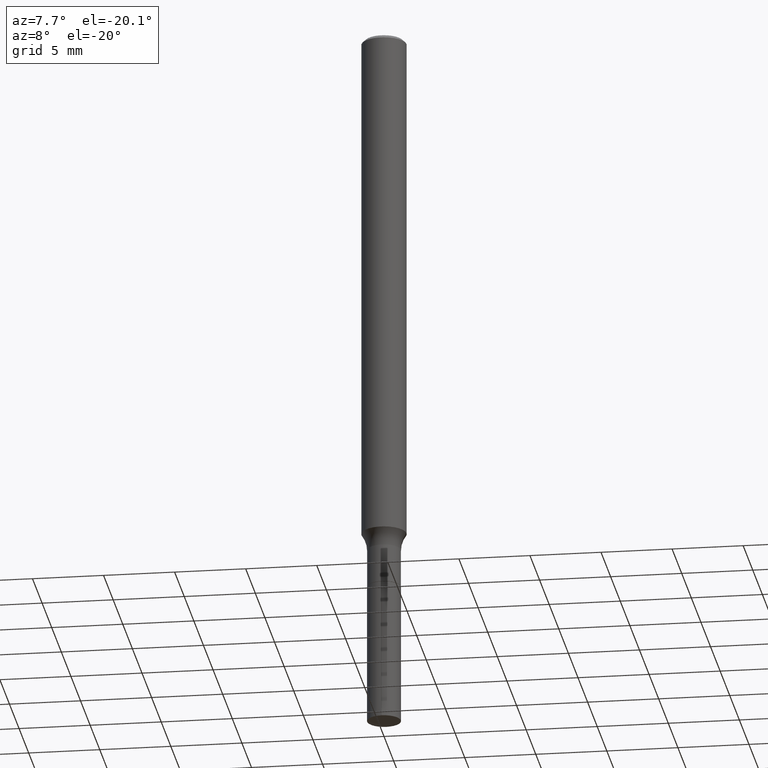
[diagram: clean part render]
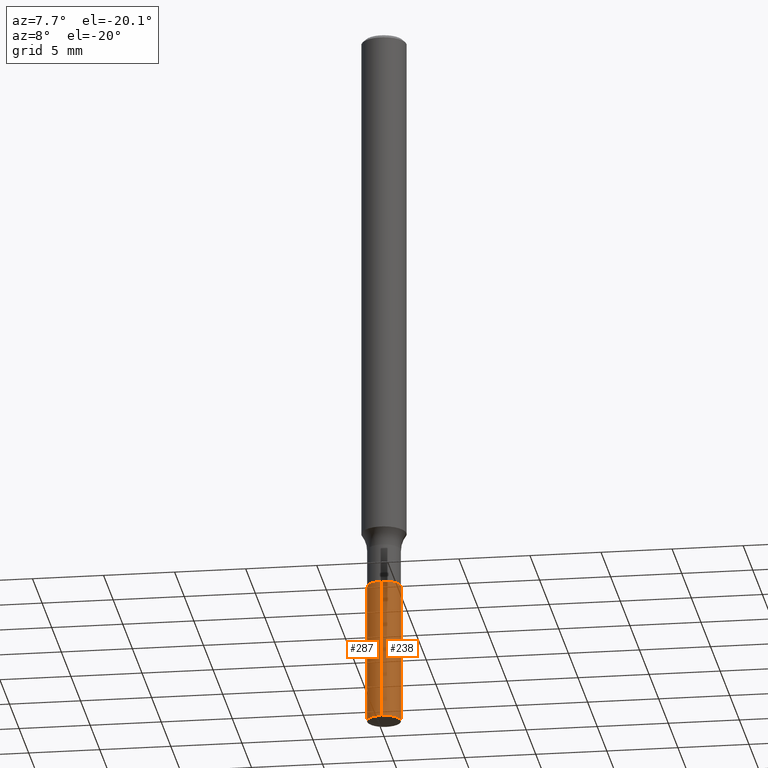
[diagram: same view with one multi-face feature highlighted, each face labeled with its STEP entity id]
A machine part, auxiliary view. The highlighted faces form ONE feature: a constant-radius fillet chain: 2 tangent blend faces with common blend radius 1.1874 mm. The faces share edges in the B-rep.
Their STEP definitions:
[1] entity #238 (Cylinder):
#70 = VECTOR ( 'NONE', #330, 39.37007874015748143 ) ;
#72 = CARTESIAN_POINT ( 'NONE',  ( -3.264535051817940010E-16, -0.04675000000000557182, -1.593499999999999917 ) ) ;
#74 = LINE ( 'NONE', #342, #352 ) ;
#80 = CARTESIAN_POINT ( 'NONE',  ( 3.321787289678954497E-16, 0.04674999999999308875, -1.985259781619907793 ) ) ;
#81 = DIRECTION ( 'NONE',  ( -2.445454611709691350E-29, 3.491501666139882444E-15, 1.000000000000000000 ) ) ;
#90 = EDGE_LOOP ( 'NONE', ( #112, #412, #204, #96 ) ) ;
#91 = AXIS2_PLACEMENT_3D ( 'NONE', #226, #220, #305 ) ;
#96 = ORIENTED_EDGE ( 'NONE', *, *, #355, .F. ) ;
#112 = ORIENTED_EDGE ( 'NONE', *, *, #477, .T. ) ;
#191 = DIRECTION ( 'NONE',  ( -2.445454611709691350E-29, 3.491501666139882444E-15, 1.000000000000000000 ) ) ;
#204 = ORIENTED_EDGE ( 'NONE', *, *, #317, .F. ) ;
#208 = AXIS2_PLACEMENT_3D ( 'NONE', #334, #294, #381 ) ;
#220 = DIRECTION ( 'NONE',  ( -2.445454611709691350E-29, 3.491501666139882444E-15, 1.000000000000000000 ) ) ;
#226 = CARTESIAN_POINT ( 'NONE',  ( 4.854885307300799577E-29, -6.931505443699056081E-15, -1.985259781619907349 ) ) ;
#238 = ADVANCED_FACE ( 'NONE', ( #432 ), #353, .T. ) ;
#268 = DIRECTION ( 'NONE',  ( -6.982962677686266711E-15, -1.000000000000000000, 5.843525120137461189E-15 ) ) ;
#285 = CIRCLE ( 'NONE', #91, 0.04674999999999999989 ) ;
#294 = DIRECTION ( 'NONE',  ( -2.445454611709691350E-29, 3.491501666139882444E-15, 1.000000000000000000 ) ) ;
#303 = CARTESIAN_POINT ( 'NONE',  ( 3.321787289678954004E-16, 0.04674999999999443490, -1.593500000000000361 ) ) ;
#305 = DIRECTION ( 'NONE',  ( -6.982962677686266711E-15, -1.000000000000000000, 5.843525120137461189E-15 ) ) ;
#317 = EDGE_CURVE ( 'NONE', #363, #384, #485, .T. ) ;
#318 = VERTEX_POINT ( 'NONE', #457 ) ;
#330 = DIRECTION ( 'NONE',  ( -2.445454611709691350E-29, 3.491501666139882444E-15, 1.000000000000000000 ) ) ;
#334 = CARTESIAN_POINT ( 'NONE',  ( 3.896854542656015611E-29, -5.563675513446552755E-15, -1.593500000000000139 ) ) ;
#338 = LINE ( 'NONE', #72, #70 ) ;
#341 = AXIS2_PLACEMENT_3D ( 'NONE', #473, #81, #268 ) ;
#342 = CARTESIAN_POINT ( 'NONE',  ( 3.321787289678857368E-16, 0.04674999999999443490, -1.593500000000000361 ) ) ;
#352 = VECTOR ( 'NONE', #191, 39.37007874015748143 ) ;
#353 = CYLINDRICAL_SURFACE ( 'NONE', #341, 0.04674999999999999989 ) ;
#355 = EDGE_CURVE ( 'NONE', #318, #363, #338, .T. ) ;
#363 = VERTEX_POINT ( 'NONE', #491 ) ;
#381 = DIRECTION ( 'NONE',  ( -6.982962677686266711E-15, -1.000000000000000000, 5.843525120137461189E-15 ) ) ;
#384 = VERTEX_POINT ( 'NONE', #303 ) ;
#407 = EDGE_CURVE ( 'NONE', #460, #384, #74, .T. ) ;
#412 = ORIENTED_EDGE ( 'NONE', *, *, #407, .T. ) ;
#432 = FACE_OUTER_BOUND ( 'NONE', #90, .T. ) ;
#457 = CARTESIAN_POINT ( 'NONE',  ( -3.264535051817844853E-16, -0.04675000000000695266, -1.985259781619907127 ) ) ;
#460 = VERTEX_POINT ( 'NONE', #80 ) ;
#473 = CARTESIAN_POINT ( 'NONE',  ( 3.896854542656015611E-29, -5.563675513446552755E-15, -1.593500000000000139 ) ) ;
#477 = EDGE_CURVE ( 'NONE', #318, #460, #285, .T. ) ;
#485 = CIRCLE ( 'NONE', #208, 0.04674999999999999989 ) ;
#491 = CARTESIAN_POINT ( 'NONE',  ( -3.264535051817940010E-16, -0.04675000000000557182, -1.593499999999999917 ) ) ;
[2] entity #287 (Cylinder):
#31 = DIRECTION ( 'NONE',  ( -6.982962677686266711E-15, -1.000000000000000000, 5.843525120137461189E-15 ) ) ;
#58 = DIRECTION ( 'NONE',  ( -2.445454611709691350E-29, 3.491501666139882444E-15, 1.000000000000000000 ) ) ;
#70 = VECTOR ( 'NONE', #330, 39.37007874015748143 ) ;
#72 = CARTESIAN_POINT ( 'NONE',  ( -3.264535051817940010E-16, -0.04675000000000557182, -1.593499999999999917 ) ) ;
#74 = LINE ( 'NONE', #342, #352 ) ;
#76 = CARTESIAN_POINT ( 'NONE',  ( 4.854885307300799577E-29, -6.931505443699056081E-15, -1.985259781619907349 ) ) ;
#80 = CARTESIAN_POINT ( 'NONE',  ( 3.321787289678954497E-16, 0.04674999999999308875, -1.985259781619907793 ) ) ;
#86 = AXIS2_PLACEMENT_3D ( 'NONE', #121, #58, #31 ) ;
#94 = ORIENTED_EDGE ( 'NONE', *, *, #227, .F. ) ;
#103 = ORIENTED_EDGE ( 'NONE', *, *, #355, .T. ) ;
#111 = DIRECTION ( 'NONE',  ( -2.445454611709691350E-29, 3.491501666139882444E-15, 1.000000000000000000 ) ) ;
#117 = DIRECTION ( 'NONE',  ( -2.445454611709691350E-29, 3.491501666139882444E-15, 1.000000000000000000 ) ) ;
#121 = CARTESIAN_POINT ( 'NONE',  ( 3.896854542656015611E-29, -5.563675513446552755E-15, -1.593500000000000139 ) ) ;
#155 = EDGE_CURVE ( 'NONE', #460, #318, #190, .T. ) ;
#190 = CIRCLE ( 'NONE', #461, 0.04674999999999999989 ) ;
#191 = DIRECTION ( 'NONE',  ( -2.445454611709691350E-29, 3.491501666139882444E-15, 1.000000000000000000 ) ) ;
#212 = ORIENTED_EDGE ( 'NONE', *, *, #407, .F. ) ;
#227 = EDGE_CURVE ( 'NONE', #384, #363, #307, .T. ) ;
#263 = EDGE_LOOP ( 'NONE', ( #212, #321, #103, #94 ) ) ;
#287 = ADVANCED_FACE ( 'NONE', ( #356 ), #474, .T. ) ;
#303 = CARTESIAN_POINT ( 'NONE',  ( 3.321787289678954004E-16, 0.04674999999999443490, -1.593500000000000361 ) ) ;
#307 = CIRCLE ( 'NONE', #313, 0.04674999999999999989 ) ;
#309 = CARTESIAN_POINT ( 'NONE',  ( 3.896854542656015611E-29, -5.563675513446552755E-15, -1.593500000000000139 ) ) ;
#313 = AXIS2_PLACEMENT_3D ( 'NONE', #309, #117, #390 ) ;
#318 = VERTEX_POINT ( 'NONE', #457 ) ;
#321 = ORIENTED_EDGE ( 'NONE', *, *, #155, .T. ) ;
#330 = DIRECTION ( 'NONE',  ( -2.445454611709691350E-29, 3.491501666139882444E-15, 1.000000000000000000 ) ) ;
#338 = LINE ( 'NONE', #72, #70 ) ;
#342 = CARTESIAN_POINT ( 'NONE',  ( 3.321787289678857368E-16, 0.04674999999999443490, -1.593500000000000361 ) ) ;
#352 = VECTOR ( 'NONE', #191, 39.37007874015748143 ) ;
#355 = EDGE_CURVE ( 'NONE', #318, #363, #338, .T. ) ;
#356 = FACE_OUTER_BOUND ( 'NONE', #263, .T. ) ;
#363 = VERTEX_POINT ( 'NONE', #491 ) ;
#384 = VERTEX_POINT ( 'NONE', #303 ) ;
#390 = DIRECTION ( 'NONE',  ( -6.982962677686266711E-15, -1.000000000000000000, 5.843525120137461189E-15 ) ) ;
#407 = EDGE_CURVE ( 'NONE', #460, #384, #74, .T. ) ;
#457 = CARTESIAN_POINT ( 'NONE',  ( -3.264535051817844853E-16, -0.04675000000000695266, -1.985259781619907127 ) ) ;
#460 = VERTEX_POINT ( 'NONE', #80 ) ;
#461 = AXIS2_PLACEMENT_3D ( 'NONE', #76, #111, #470 ) ;
#470 = DIRECTION ( 'NONE',  ( -6.982962677686266711E-15, -1.000000000000000000, 5.843525120137461189E-15 ) ) ;
#474 = CYLINDRICAL_SURFACE ( 'NONE', #86, 0.04674999999999999989 ) ;
#491 = CARTESIAN_POINT ( 'NONE',  ( -3.264535051817940010E-16, -0.04675000000000557182, -1.593499999999999917 ) ) ;